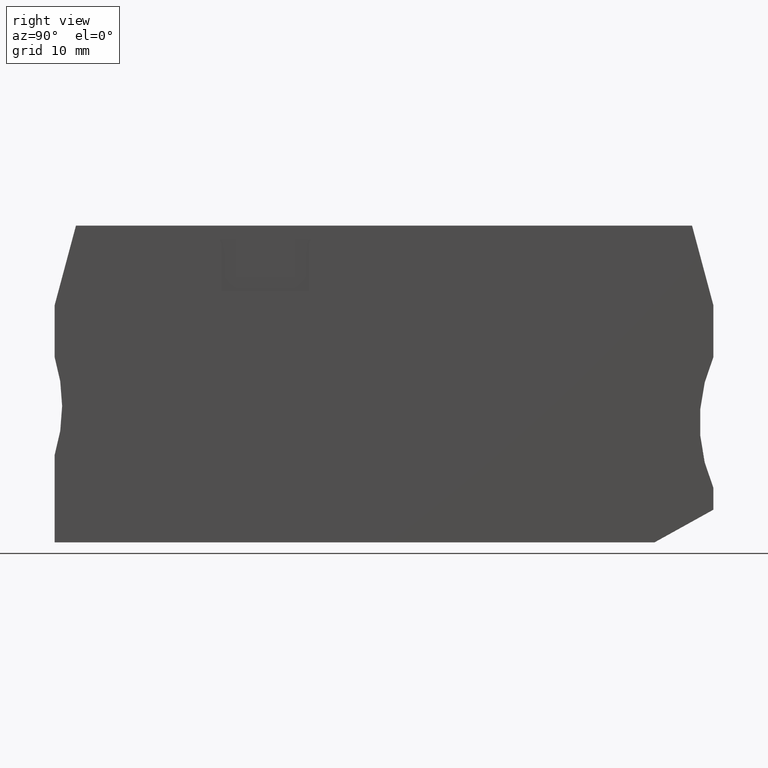
[diagram: clean part render]
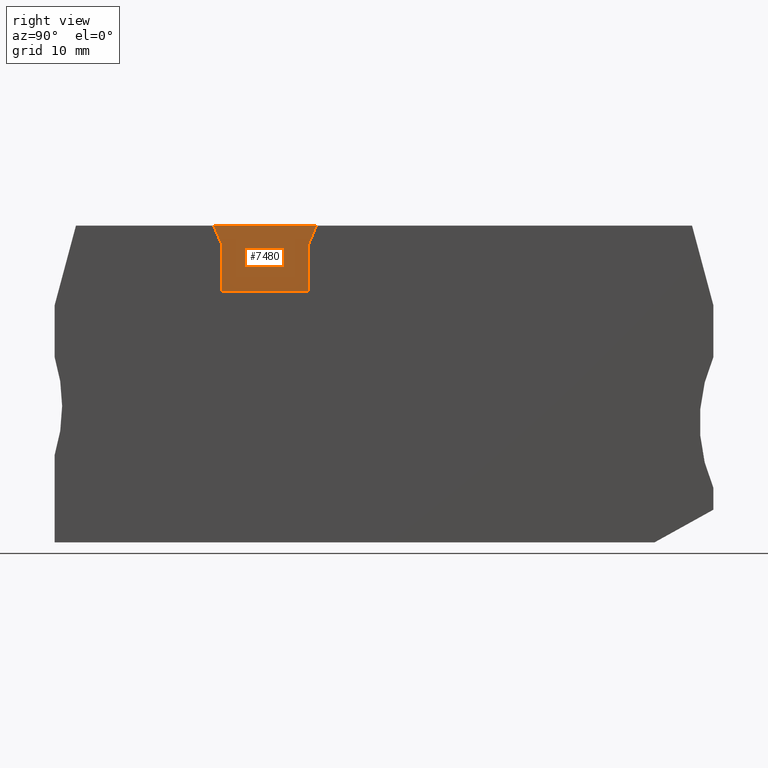
[diagram: same view with one face highlighted and labeled with its STEP entity id]
A machine part, right view. The second image highlights one B-rep face of the part: STEP entity #7480.
In plain terms, the highlighted planar face has unit normal (1, 0, 0).
Its self-contained STEP definition (entity closure, byte-faithful):
#4550=CARTESIAN_POINT('',(1.65066694096876,-9.14999999999962,55.27));
#4560=VERTEX_POINT('',#4550);
#4590=CARTESIAN_POINT('',(11.4461541156319,-9.14999999999962,55.27));
#4600=DIRECTION('',(1.,0.,0.));
#4610=VECTOR('',#4600,1.);
#4620=LINE('',#4590,#4610);
#4630=CARTESIAN_POINT('',(-7.78633249760117,-9.14999999999962,55.27));
#4640=VERTEX_POINT('',#4630);
#4650=EDGE_CURVE('',#4640,#4560,#4620,.T.);
#6870=CARTESIAN_POINT('',(0.932167221679233,-10.8499999999657,55.27));
#6880=VERTEX_POINT('',#6870);
#6910=CARTESIAN_POINT('',(0.391157740170115,-12.1300507694328,55.27));
#6920=DIRECTION('',(0.389303997098565,0.921109330016302,0.));
#6930=VECTOR('',#6920,1.);
#6940=LINE('',#6910,#6930);
#6950=EDGE_CURVE('',#6880,#4560,#6940,.T.);
#7090=CARTESIAN_POINT('',(7.8321672216793,-23.6749999999963,55.27));
#7100=DIRECTION('',(0.,0.,1.));
#7110=DIRECTION('',(1.,0.,0.));
#7120=AXIS2_PLACEMENT_3D('',#7090,#7100,#7110);
#7130=PLANE('',#7120);
#7140=ORIENTED_EDGE('',*,*,#4650,.F.);
#7150=ORIENTED_EDGE('',*,*,#6950,.T.);
#7160=CARTESIAN_POINT('',(0.932167221678711,-12.130050769433,55.27));
#7170=DIRECTION('',(4.09450718512422E-13,1.,0.));
#7180=VECTOR('',#7170,1.);
#7190=LINE('',#7160,#7180);
#7200=CARTESIAN_POINT('',(0.932167221677473,-15.1500000000082,55.27));
#7210=VERTEX_POINT('',#7200);
#7220=EDGE_CURVE('',#7210,#6880,#7190,.T.);
#7230=ORIENTED_EDGE('',*,*,#7220,.T.);
#7240=CARTESIAN_POINT('',(11.4461541156297,-15.1500000000125,55.27));
#7250=DIRECTION('',(-1.,4.08951118151342E-13,0.));
#7260=VECTOR('',#7250,1.);
#7270=LINE('',#7240,#7260);
#7280=CARTESIAN_POINT('',(-7.06783277832226,-15.1500000000049,55.27));
#7290=VERTEX_POINT('',#7280);
#7300=EDGE_CURVE('',#7210,#7290,#7270,.T.);
#7310=ORIENTED_EDGE('',*,*,#7300,.F.);
#7320=CARTESIAN_POINT('',(-7.06783277832105,-12.1300507694298,55.27));
#7330=DIRECTION('',(3.99736267046952E-13,1.,0.));
#7340=VECTOR('',#7330,1.);
#7350=LINE('',#7320,#7340);
#7360=CARTESIAN_POINT('',(-7.06783277832059,-10.8500000000082,55.27));
#7370=VERTEX_POINT('',#7360);
#7380=EDGE_CURVE('',#7290,#7370,#7350,.T.);
#7390=ORIENTED_EDGE('',*,*,#7380,.F.);
#7400=CARTESIAN_POINT('',(-6.52682329685441,-12.13005076943,55.27));
#7410=DIRECTION('',(0.38930399708582,-0.921109330021689,0.));
#7420=VECTOR('',#7410,1.);
#7430=LINE('',#7400,#7420);
#7440=EDGE_CURVE('',#4640,#7370,#7430,.T.);
#7450=ORIENTED_EDGE('',*,*,#7440,.T.);
#7460=EDGE_LOOP('',(#7450,#7390,#7310,#7230,#7150,#7140));
#7470=FACE_OUTER_BOUND('',#7460,.T.);
#7480=ADVANCED_FACE('',(#7470),#7130,.T.);